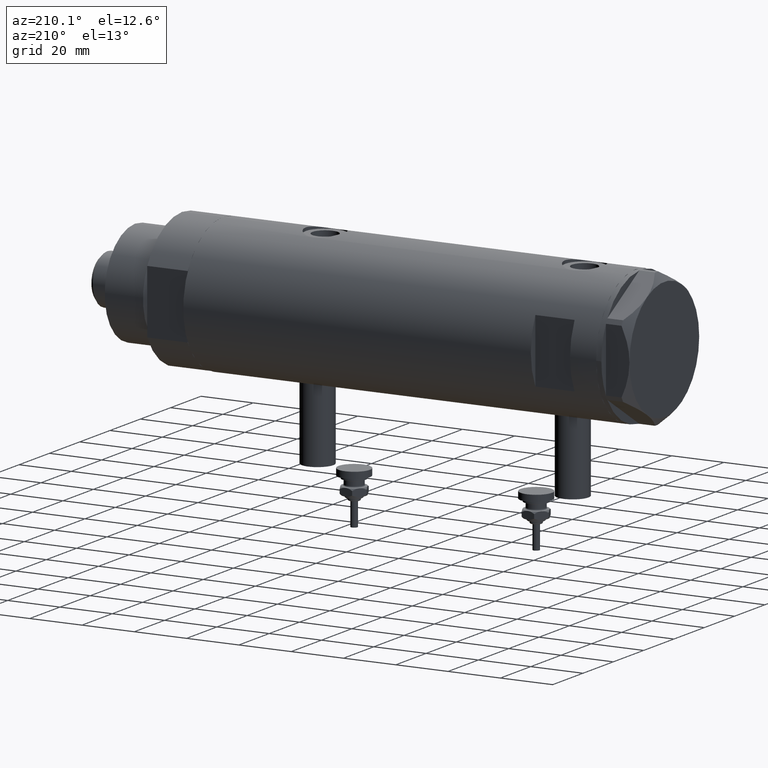
[diagram: clean part render]
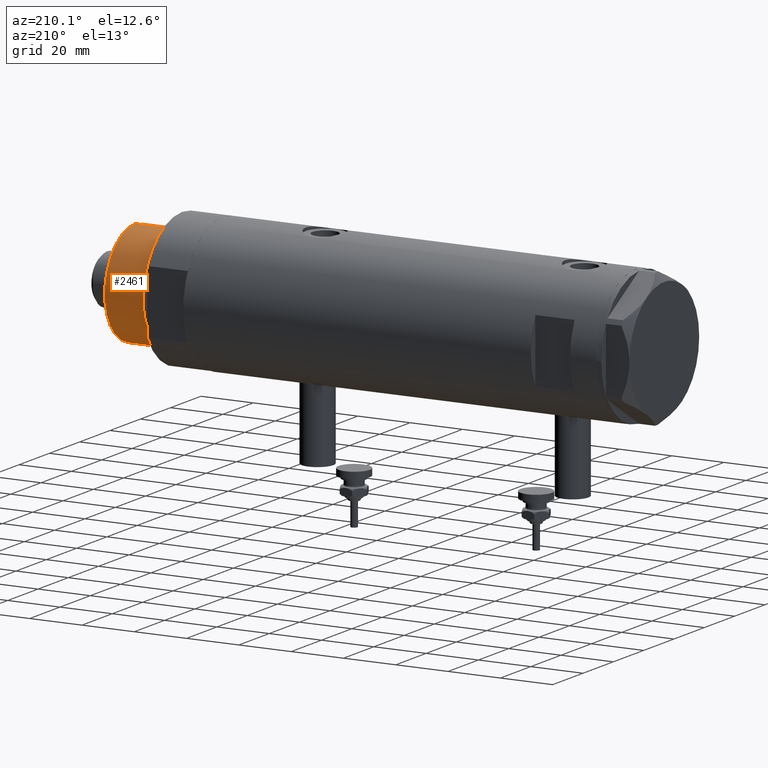
[diagram: same view with one face highlighted and labeled with its STEP entity id]
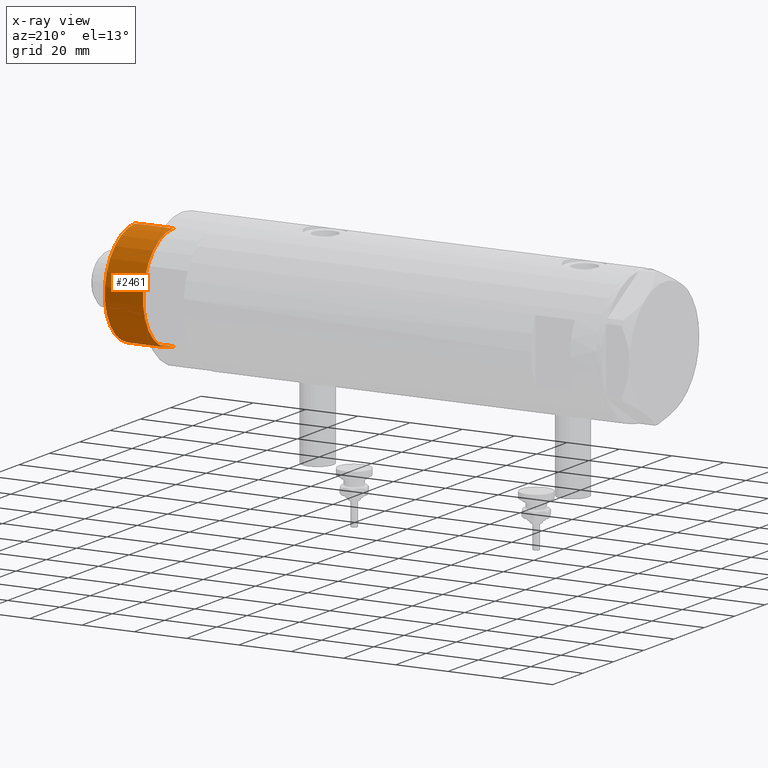
[diagram: x-ray of the same camera — body ghosted, the highlighted face saturated]
A machine part, auxiliary view. The second image highlights one B-rep face of the part: STEP entity #2461.
The next image is the same camera in x-ray: the body ghosted, the highlighted face saturated — about 0% of this face is hidden behind the body in this view.
In plain terms, the highlighted cylindrical surface (partial cylindrical patch) has radius 20 mm, axis along (-1, -0, 0).
Its self-contained STEP definition (entity closure, byte-faithful):
#100 = AXIS2_PLACEMENT_3D ( 'NONE', #5287, #4402, #3935 ) ;
#623 = VERTEX_POINT ( 'NONE', #5112 ) ;
#797 = EDGE_CURVE ( 'NONE', #2840, #623, #2877, .T. ) ;
#849 = CARTESIAN_POINT ( 'NONE',  ( 19.99999999999999645, 2.449293598294706119E-15, 18.87384048104053846 ) ) ;
#962 = DIRECTION ( 'NONE',  ( -0.000000000000000000, -0.000000000000000000, -1.000000000000000000 ) ) ;
#1409 = CARTESIAN_POINT ( 'NONE',  ( 19.99999999999999645, 2.449293598294706119E-15, 33.50000000000000000 ) ) ;
#1557 = VECTOR ( 'NONE', #4758, 1000.000000000000000 ) ;
#1875 = CARTESIAN_POINT ( 'NONE',  ( 0.000000000000000000, 0.000000000000000000, 33.50000000000000000 ) ) ;
#1971 = DIRECTION ( 'NONE',  ( 1.000000000000000000, 0.000000000000000000, 0.000000000000000000 ) ) ;
#2072 = EDGE_CURVE ( 'NONE', #2314, #3324, #6170, .T. ) ;
#2169 = DIRECTION ( 'NONE',  ( 1.000000000000000000, 0.000000000000000000, 0.000000000000000000 ) ) ;
#2228 = ORIENTED_EDGE ( 'NONE', *, *, #2513, .F. ) ;
#2289 = AXIS2_PLACEMENT_3D ( 'NONE', #3233, #3589, #2169 ) ;
#2314 = VERTEX_POINT ( 'NONE', #1409 ) ;
#2325 = EDGE_LOOP ( 'NONE', ( #2228, #2623, #5266, #3619 ) ) ;
#2461 = ADVANCED_FACE ( 'NONE', ( #3388 ), #4877, .T. ) ;
#2513 = EDGE_CURVE ( 'NONE', #2314, #2840, #2582, .T. ) ;
#2582 = CIRCLE ( 'NONE', #3607, 19.99999999999999645 ) ;
#2623 = ORIENTED_EDGE ( 'NONE', *, *, #2072, .T. ) ;
#2840 = VERTEX_POINT ( 'NONE', #5312 ) ;
#2877 = LINE ( 'NONE', #3456, #6112 ) ;
#3233 = CARTESIAN_POINT ( 'NONE',  ( 0.000000000000000000, 0.000000000000000000, 18.87384048104053846 ) ) ;
#3324 = VERTEX_POINT ( 'NONE', #849 ) ;
#3331 = DIRECTION ( 'NONE',  ( 0.000000000000000000, 0.000000000000000000, 1.000000000000000000 ) ) ;
#3388 = FACE_OUTER_BOUND ( 'NONE', #2325, .T. ) ;
#3456 = CARTESIAN_POINT ( 'NONE',  ( -19.99999999999999645, 0.000000000000000000, 33.50000000000000000 ) ) ;
#3589 = DIRECTION ( 'NONE',  ( -0.000000000000000000, -0.000000000000000000, 1.000000000000000000 ) ) ;
#3607 = AXIS2_PLACEMENT_3D ( 'NONE', #1875, #3331, #1971 ) ;
#3619 = ORIENTED_EDGE ( 'NONE', *, *, #797, .F. ) ;
#3935 = DIRECTION ( 'NONE',  ( -1.000000000000000000, 0.000000000000000000, 0.000000000000000000 ) ) ;
#4402 = DIRECTION ( 'NONE',  ( -0.000000000000000000, -0.000000000000000000, -1.000000000000000000 ) ) ;
#4758 = DIRECTION ( 'NONE',  ( -0.000000000000000000, -0.000000000000000000, -1.000000000000000000 ) ) ;
#4877 = CYLINDRICAL_SURFACE ( 'NONE', #100, 19.99999999999999645 ) ;
#4947 = CIRCLE ( 'NONE', #2289, 19.99999999999999645 ) ;
#5112 = CARTESIAN_POINT ( 'NONE',  ( -19.99999999999999645, 0.000000000000000000, 18.87384048104053846 ) ) ;
#5156 = EDGE_CURVE ( 'NONE', #3324, #623, #4947, .T. ) ;
#5266 = ORIENTED_EDGE ( 'NONE', *, *, #5156, .T. ) ;
#5287 = CARTESIAN_POINT ( 'NONE',  ( 0.000000000000000000, 0.000000000000000000, 33.50000000000000000 ) ) ;
#5312 = CARTESIAN_POINT ( 'NONE',  ( -19.99999999999999645, 0.000000000000000000, 33.50000000000000000 ) ) ;
#6112 = VECTOR ( 'NONE', #962, 1000.000000000000000 ) ;
#6170 = LINE ( 'NONE', #6244, #1557 ) ;
#6244 = CARTESIAN_POINT ( 'NONE',  ( 19.99999999999999645, 2.449293598294706119E-15, 33.50000000000000000 ) ) ;